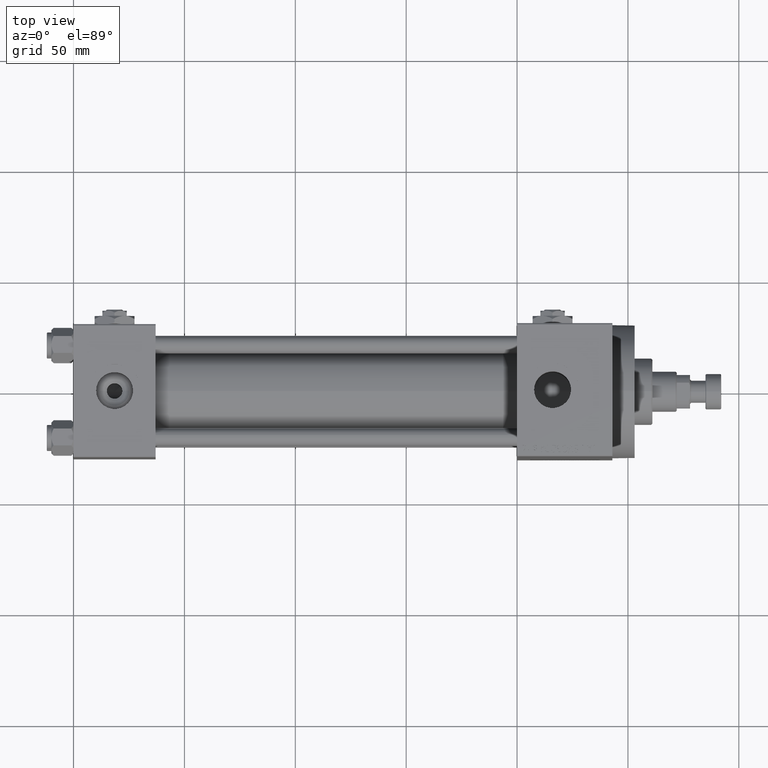
[diagram: clean part render]
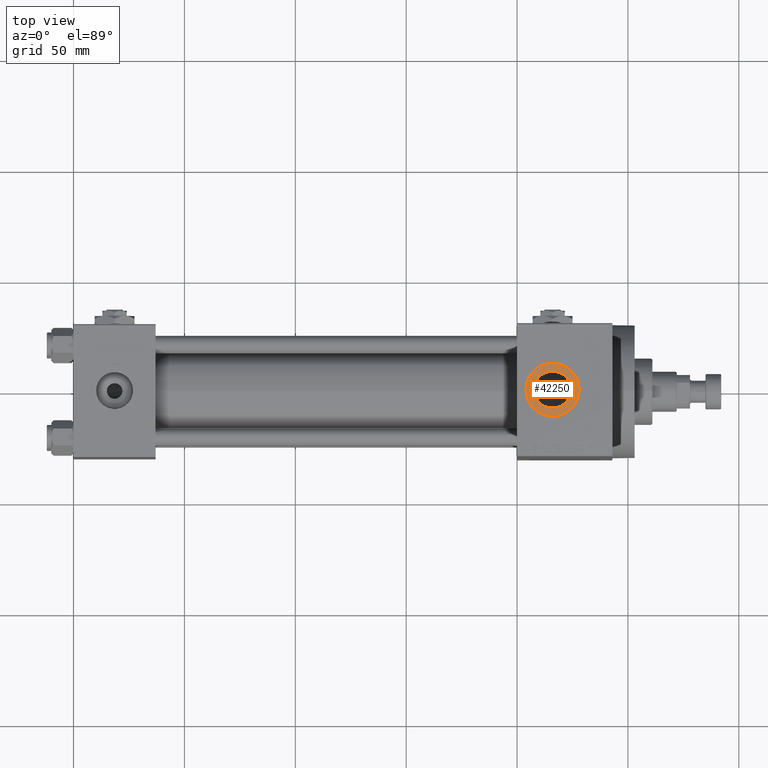
[diagram: same view with one face highlighted and labeled with its STEP entity id]
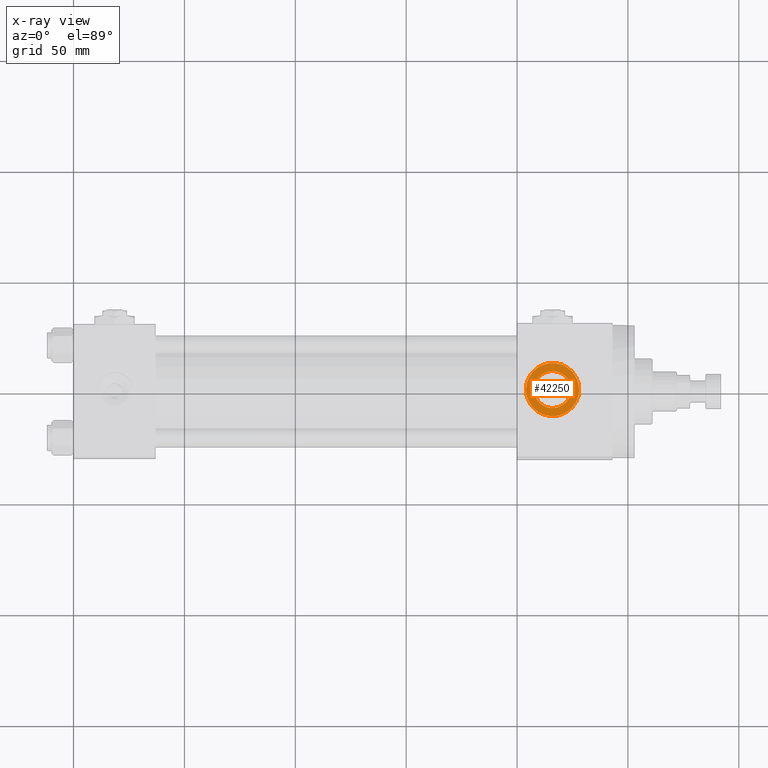
[diagram: x-ray of the same camera — body ghosted, the highlighted face saturated]
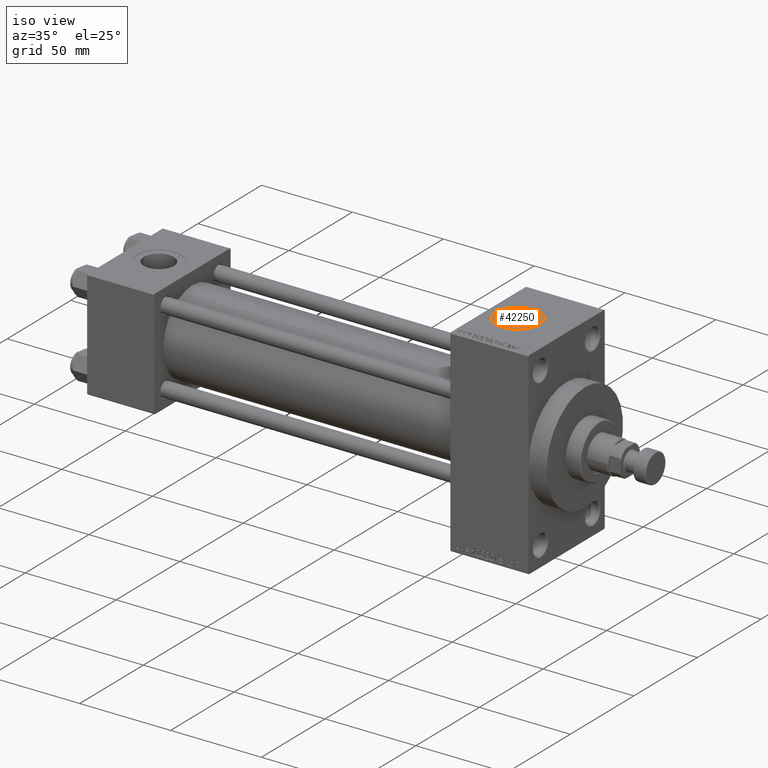
[diagram: same view with one face highlighted and labeled with its STEP entity id]
A machine part, top view. The second image highlights one B-rep face of the part: STEP entity #42250.
The next image is the same camera in x-ray: the body ghosted, the highlighted face saturated — about 0% of this face is hidden behind the body in this view.
A second angle (iso view) of the same face is appended — the face is thin or edge-on in the first view.
In plain terms, the highlighted planar face has unit normal (0, 0, 1).
Its self-contained STEP definition (entity closure, byte-faithful):
#992 = AXIS2_PLACEMENT_3D ( 'NONE', #26113, #49762, #3993 ) ;
#3993 = DIRECTION ( 'NONE',  ( 1.000000000000000000, 0.000000000000000000, 0.000000000000000000 ) ) ;
#6151 = CARTESIAN_POINT ( 'NONE',  ( 228.0000000000000284, 6.302828629382399373E-15, 54.29999999999999716 ) ) ;
#6740 = CIRCLE ( 'NONE', #9929, 8.330000000000003624 ) ;
#8567 = DIRECTION ( 'NONE',  ( 1.000000000000000000, 0.000000000000000000, 0.000000000000000000 ) ) ;
#8900 = VERTEX_POINT ( 'NONE', #6151 ) ;
#9221 = EDGE_LOOP ( 'NONE', ( #37513, #29383 ) ) ;
#9929 = AXIS2_PLACEMENT_3D ( 'NONE', #14233, #48695, #10461 ) ;
#10373 = VERTEX_POINT ( 'NONE', #35530 ) ;
#10461 = DIRECTION ( 'NONE',  ( 1.000000000000000000, 0.000000000000000000, 0.000000000000000000 ) ) ;
#10527 = CARTESIAN_POINT ( 'NONE',  ( 224.3300000000000409, 7.322959413072145713E-15, 54.29999999999999716 ) ) ;
#11458 = EDGE_CURVE ( 'NONE', #10373, #8900, #16406, .T. ) ;
#11489 = DIRECTION ( 'NONE',  ( 0.000000000000000000, 0.000000000000000000, 1.000000000000000000 ) ) ;
#11975 = DIRECTION ( 'NONE',  ( 1.000000000000000000, 0.000000000000000000, -0.000000000000000000 ) ) ;
#14233 = CARTESIAN_POINT ( 'NONE',  ( 216.0000000000000284, 6.302828629382400162E-15, 54.29999999999999716 ) ) ;
#15115 = CARTESIAN_POINT ( 'NONE',  ( 216.0000000000000284, 6.302828629382399373E-15, 54.29999999999999716 ) ) ;
#15589 = VERTEX_POINT ( 'NONE', #34038 ) ;
#15624 = DIRECTION ( 'NONE',  ( 0.000000000000000000, 0.000000000000000000, 1.000000000000000000 ) ) ;
#16406 = CIRCLE ( 'NONE', #43709, 12.00000000000001066 ) ;
#17061 = CIRCLE ( 'NONE', #992, 12.00000000000001066 ) ;
#17699 = EDGE_CURVE ( 'NONE', #49252, #15589, #36813, .T. ) ;
#22819 = EDGE_LOOP ( 'NONE', ( #39706, #48543 ) ) ;
#23777 = PLANE ( 'NONE',  #28058 ) ;
#26113 = CARTESIAN_POINT ( 'NONE',  ( 216.0000000000000284, 6.302828629382399373E-15, 54.29999999999999716 ) ) ;
#28058 = AXIS2_PLACEMENT_3D ( 'NONE', #34877, #11489, #11975 ) ;
#29383 = ORIENTED_EDGE ( 'NONE', *, *, #17699, .T. ) ;
#29714 = EDGE_CURVE ( 'NONE', #8900, #10373, #17061, .T. ) ;
#33862 = EDGE_CURVE ( 'NONE', #15589, #49252, #6740, .T. ) ;
#34038 = CARTESIAN_POINT ( 'NONE',  ( 207.6700000000000159, 6.302828629382400162E-15, 54.29999999999999716 ) ) ;
#34877 = CARTESIAN_POINT ( 'NONE',  ( 216.0000000000000284, 6.302828629382399373E-15, 54.29999999999999716 ) ) ;
#35530 = CARTESIAN_POINT ( 'NONE',  ( 204.0000000000000284, 7.772404788359223517E-15, 54.29999999999999716 ) ) ;
#36813 = CIRCLE ( 'NONE', #43244, 8.330000000000003624 ) ;
#36892 = FACE_OUTER_BOUND ( 'NONE', #22819, .T. ) ;
#37513 = ORIENTED_EDGE ( 'NONE', *, *, #33862, .T. ) ;
#39004 = CARTESIAN_POINT ( 'NONE',  ( 216.0000000000000284, 6.302828629382400162E-15, 54.29999999999999716 ) ) ;
#39706 = ORIENTED_EDGE ( 'NONE', *, *, #29714, .T. ) ;
#41926 = FACE_BOUND ( 'NONE', #9221, .T. ) ;
#42250 = ADVANCED_FACE ( 'NONE', ( #41926, #36892 ), #23777, .T. ) ;
#43244 = AXIS2_PLACEMENT_3D ( 'NONE', #39004, #49579, #45542 ) ;
#43709 = AXIS2_PLACEMENT_3D ( 'NONE', #15115, #15624, #8567 ) ;
#45542 = DIRECTION ( 'NONE',  ( 1.000000000000000000, 0.000000000000000000, 0.000000000000000000 ) ) ;
#48543 = ORIENTED_EDGE ( 'NONE', *, *, #11458, .T. ) ;
#48695 = DIRECTION ( 'NONE',  ( -0.000000000000000000, -0.000000000000000000, -1.000000000000000000 ) ) ;
#49252 = VERTEX_POINT ( 'NONE', #10527 ) ;
#49579 = DIRECTION ( 'NONE',  ( -0.000000000000000000, -0.000000000000000000, -1.000000000000000000 ) ) ;
#49762 = DIRECTION ( 'NONE',  ( 0.000000000000000000, 0.000000000000000000, 1.000000000000000000 ) ) ;